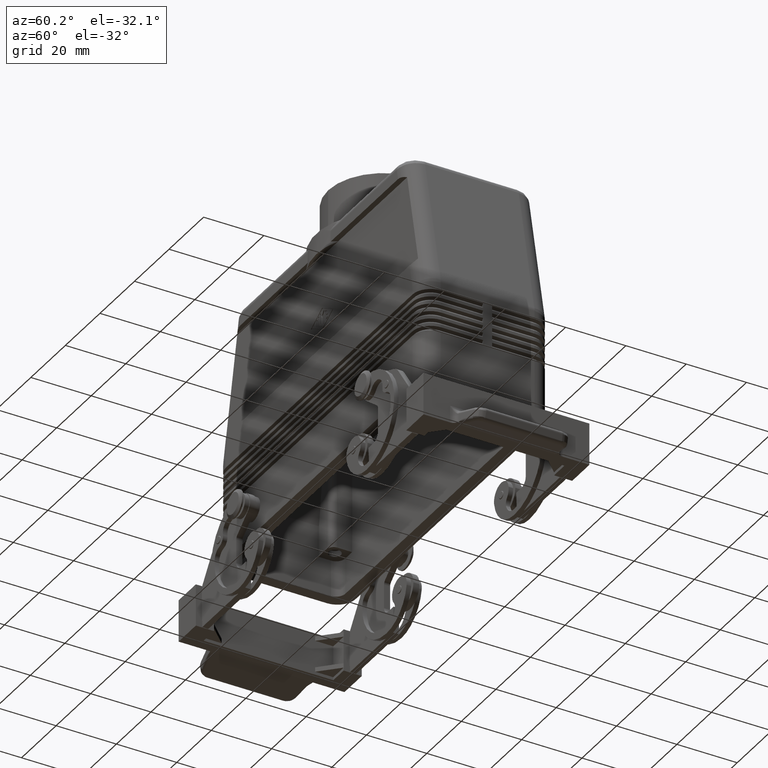
[diagram: clean part render]
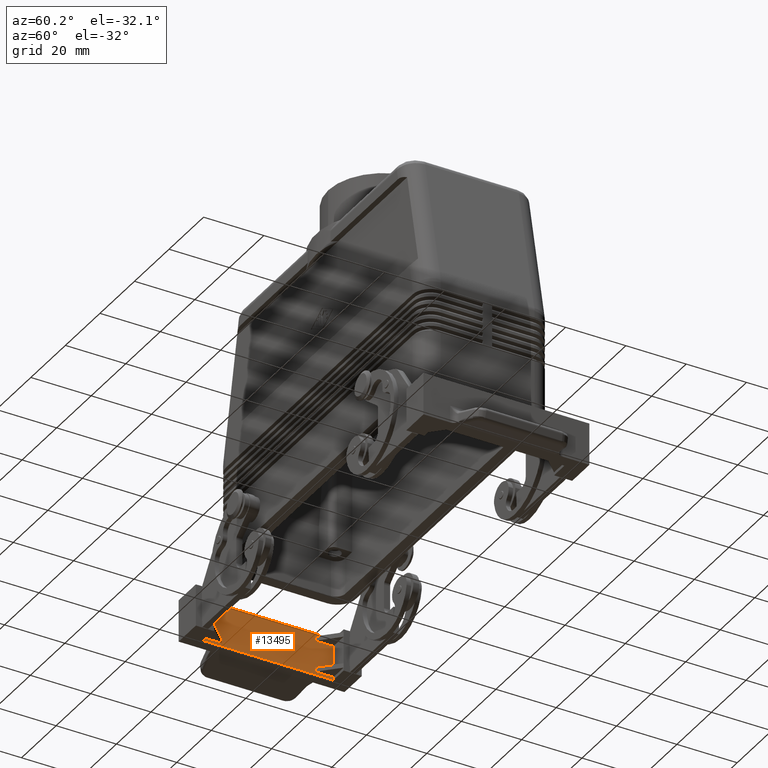
[diagram: same view with one face highlighted and labeled with its STEP entity id]
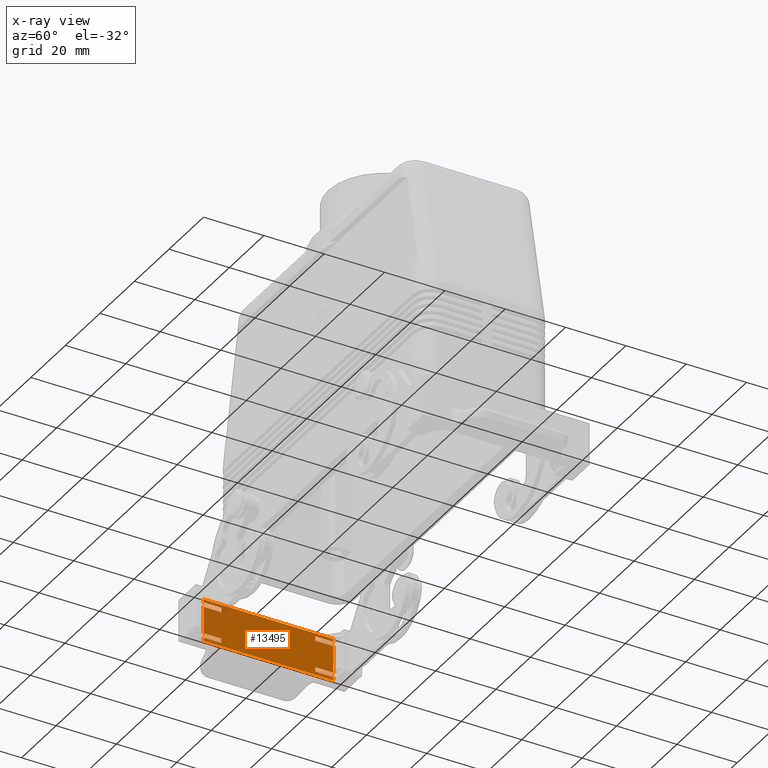
[diagram: x-ray of the same camera — body ghosted, the highlighted face saturated]
A machine part, auxiliary view. The second image highlights one B-rep face of the part: STEP entity #13495.
The next image is the same camera in x-ray: the body ghosted, the highlighted face saturated — about 1% of this face is hidden behind the body in this view.
In plain terms, the highlighted face is a freeform B-spline surface patch.
Its self-contained STEP definition (entity closure, byte-faithful):
#13142=CARTESIAN_POINT('',(-66.900000000000006,15.500000000000007,-9.000000000000002));
#13143=VERTEX_POINT('',#13142);
#13152=CARTESIAN_POINT('',(-66.900000000000006,21.500000000000004,-8.999999999999996));
#13153=VERTEX_POINT('',#13152);
#13154=CARTESIAN_POINT('',(-66.900000000000006,15.500000000000007,-9.000000000000002));
#13155=DIRECTION('',(0.0,1.0,0.0));
#13156=VECTOR('',#13155,5.999999999999996);
#13157=LINE('',#13154,#13156);
#13158=EDGE_CURVE('',#13143,#13153,#13157,.T.);
#13176=CARTESIAN_POINT('',(-66.900000000000006,15.500000000000007,-18.0));
#13177=VERTEX_POINT('',#13176);
#13184=CARTESIAN_POINT('',(-66.900000000000006,21.500000000000004,-18.0));
#13185=VERTEX_POINT('',#13184);
#13192=CARTESIAN_POINT('',(-66.900000000000006,21.500000000000004,-18.0));
#13193=DIRECTION('',(0.0,-1.0,0.0));
#13194=VECTOR('',#13193,5.999999999999996);
#13195=LINE('',#13192,#13194);
#13196=EDGE_CURVE('',#13185,#13177,#13195,.T.);
#13207=CARTESIAN_POINT('',(-66.900000000000006,21.500000000000004,-8.999999999999996));
#13208=DIRECTION('',(0.0,0.0,-1.0));
#13209=VECTOR('',#13208,9.000000000000004);
#13210=LINE('',#13207,#13209);
#13211=EDGE_CURVE('',#13153,#13185,#13210,.T.);
#13229=CARTESIAN_POINT('',(-66.900000000000006,15.499999999999998,-19.500000000000000));
#13230=VERTEX_POINT('',#13229);
#13231=CARTESIAN_POINT('',(-66.900000000000006,15.499999999999998,-19.500000000000000));
#13232=DIRECTION('',(0.0,0.0,1.0));
#13233=VECTOR('',#13232,1.500000000000000);
#13234=LINE('',#13231,#13233);
#13235=EDGE_CURVE('',#13230,#13177,#13234,.T.);
#13268=CARTESIAN_POINT('',(-66.900000000000006,15.499999999999998,-7.500000000000000));
#13269=VERTEX_POINT('',#13268);
#13276=CARTESIAN_POINT('',(-66.900000000000006,15.500000000000007,-9.000000000000002));
#13277=DIRECTION('',(0.0,0.0,1.0));
#13278=VECTOR('',#13277,1.500000000000002);
#13279=LINE('',#13276,#13278);
#13280=EDGE_CURVE('',#13143,#13269,#13279,.T.);
#13290=CARTESIAN_POINT('',(-66.900000000000006,21.500000000000000,-7.500000000000000));
#13291=VERTEX_POINT('',#13290);
#13292=CARTESIAN_POINT('',(-66.900000000000006,15.499999999999998,-7.500000000000000));
#13293=DIRECTION('',(0.0,1.0,0.0));
#13294=VECTOR('',#13293,6.000000000000002);
#13295=LINE('',#13292,#13294);
#13296=EDGE_CURVE('',#13269,#13291,#13295,.T.);
#13313=CARTESIAN_POINT('',(-66.900000000000006,21.500000000000000,-19.500000000000000));
#13314=VERTEX_POINT('',#13313);
#13322=CARTESIAN_POINT('',(-66.900000000000006,21.500000000000000,-19.500000000000000));
#13323=DIRECTION('',(0.0,-1.0,0.0));
#13324=VECTOR('',#13323,6.000000000000002);
#13325=LINE('',#13322,#13324);
#13326=EDGE_CURVE('',#13314,#13230,#13325,.T.);
#13345=CARTESIAN_POINT('',(-66.899999999999991,21.500000000000014,-6.500000000000012));
#13346=VERTEX_POINT('',#13345);
#13353=CARTESIAN_POINT('',(-66.899999999999991,21.500000000000014,-6.500000000000012));
#13354=DIRECTION('',(0.0,0.0,-1.0));
#13355=VECTOR('',#13354,0.999999999999988);
#13356=LINE('',#13353,#13355);
#13357=EDGE_CURVE('',#13346,#13291,#13356,.T.);
#13368=CARTESIAN_POINT('',(-66.899999999999991,21.500000000000014,-20.500000000000014));
#13369=VERTEX_POINT('',#13368);
#13370=CARTESIAN_POINT('',(-66.900000000000006,21.500000000000000,-19.500000000000000));
#13371=DIRECTION('',(0.0,0.0,-1.0));
#13372=VECTOR('',#13371,1.000000000000014);
#13373=LINE('',#13370,#13372);
#13374=EDGE_CURVE('',#13314,#13369,#13373,.T.);
#13393=CARTESIAN_POINT('',(-66.899999999999991,21.500000000000014,-6.500000000000012));
#13394=CARTESIAN_POINT('',(-66.899999999999991,21.500000000000014,-20.500000000000014));
#13395=CARTESIAN_POINT('',(-66.899999999999991,-21.500000000000014,-6.500000000000012));
#13396=CARTESIAN_POINT('',(-66.899999999999991,-21.500000000000014,-20.500000000000014));
#13397=B_SPLINE_SURFACE_WITH_KNOTS('',1,1,((#13393,#13395),(#13394,#13396)),.UNSPECIFIED.,.F.,.F.,.U.,(2,2),(2,2),(0.0,14.000000000000004),(0.0,43.000000000000028),.UNSPECIFIED.);
#13398=ORIENTED_EDGE('',*,*,#13280,.T.);
#13399=ORIENTED_EDGE('',*,*,#13296,.T.);
#13400=ORIENTED_EDGE('',*,*,#13357,.F.);
#13401=CARTESIAN_POINT('',(-66.899999999999991,-21.500000000000014,-6.500000000000012));
#13402=VERTEX_POINT('',#13401);
#13403=CARTESIAN_POINT('',(-66.899999999999991,-21.500000000000014,-6.500000000000012));
#13404=DIRECTION('',(0.0,1.0,0.0));
#13405=VECTOR('',#13404,43.000000000000028);
#13406=LINE('',#13403,#13405);
#13407=EDGE_CURVE('',#13402,#13346,#13406,.T.);
#13408=ORIENTED_EDGE('',*,*,#13407,.F.);
#13409=CARTESIAN_POINT('',(-66.900000000000006,-21.500000000000000,-7.500000000000000));
#13410=VERTEX_POINT('',#13409);
#13411=CARTESIAN_POINT('',(-66.899999999999991,-21.500000000000014,-6.500000000000012));
#13412=DIRECTION('',(0.0,0.0,-1.0));
#13413=VECTOR('',#13412,0.999999999999988);
#13414=LINE('',#13411,#13413);
#13415=EDGE_CURVE('',#13402,#13410,#13414,.T.);
#13416=ORIENTED_EDGE('',*,*,#13415,.T.);
#13417=CARTESIAN_POINT('',(-66.900000000000006,-15.499999999999998,-7.500000000000000));
#13418=VERTEX_POINT('',#13417);
#13419=CARTESIAN_POINT('',(-66.900000000000006,-21.500000000000000,-7.500000000000000));
#13420=DIRECTION('',(0.0,1.0,0.0));
#13421=VECTOR('',#13420,6.000000000000002);
#13422=LINE('',#13419,#13421);
#13423=EDGE_CURVE('',#13410,#13418,#13422,.T.);
#13424=ORIENTED_EDGE('',*,*,#13423,.T.);
#13425=CARTESIAN_POINT('',(-66.900000000000006,-15.500000000000007,-9.000000000000002));
#13426=VERTEX_POINT('',#13425);
#13427=CARTESIAN_POINT('',(-66.900000000000006,-15.499999999999998,-7.500000000000000));
#13428=DIRECTION('',(0.0,0.0,-1.0));
#13429=VECTOR('',#13428,1.500000000000002);
#13430=LINE('',#13427,#13429);
#13431=EDGE_CURVE('',#13418,#13426,#13430,.T.);
#13432=ORIENTED_EDGE('',*,*,#13431,.T.);
#13433=CARTESIAN_POINT('',(-66.900000000000006,-21.500000000000004,-8.999999999999996));
#13434=VERTEX_POINT('',#13433);
#13435=CARTESIAN_POINT('',(-66.900000000000006,-15.500000000000007,-9.000000000000002));
#13436=DIRECTION('',(0.0,-1.0,0.0));
#13437=VECTOR('',#13436,5.999999999999996);
#13438=LINE('',#13435,#13437);
#13439=EDGE_CURVE('',#13426,#13434,#13438,.T.);
#13440=ORIENTED_EDGE('',*,*,#13439,.T.);
#13441=CARTESIAN_POINT('',(-66.900000000000006,-21.500000000000004,-18.0));
#13442=VERTEX_POINT('',#13441);
#13443=CARTESIAN_POINT('',(-66.900000000000006,-21.500000000000004,-8.999999999999996));
#13444=DIRECTION('',(0.0,0.0,-1.0));
#13445=VECTOR('',#13444,9.000000000000004);
#13446=LINE('',#13443,#13445);
#13447=EDGE_CURVE('',#13434,#13442,#13446,.T.);
#13448=ORIENTED_EDGE('',*,*,#13447,.T.);
#13449=CARTESIAN_POINT('',(-66.900000000000006,-15.500000000000007,-18.0));
#13450=VERTEX_POINT('',#13449);
#13451=CARTESIAN_POINT('',(-66.900000000000006,-21.500000000000004,-18.0));
#13452=DIRECTION('',(0.0,1.0,0.0));
#13453=VECTOR('',#13452,5.999999999999996);
#13454=LINE('',#13451,#13453);
#13455=EDGE_CURVE('',#13442,#13450,#13454,.T.);
#13456=ORIENTED_EDGE('',*,*,#13455,.T.);
#13457=CARTESIAN_POINT('',(-66.900000000000006,-15.499999999999998,-19.500000000000000));
#13458=VERTEX_POINT('',#13457);
#13459=CARTESIAN_POINT('',(-66.900000000000006,-15.500000000000007,-18.0));
#13460=DIRECTION('',(0.0,0.0,-1.0));
#13461=VECTOR('',#13460,1.500000000000000);
#13462=LINE('',#13459,#13461);
#13463=EDGE_CURVE('',#13450,#13458,#13462,.T.);
#13464=ORIENTED_EDGE('',*,*,#13463,.T.);
#13465=CARTESIAN_POINT('',(-66.900000000000006,-21.500000000000000,-19.500000000000000));
#13466=VERTEX_POINT('',#13465);
#13467=CARTESIAN_POINT('',(-66.900000000000006,-15.499999999999998,-19.500000000000000));
#13468=DIRECTION('',(0.0,-1.0,0.0));
#13469=VECTOR('',#13468,6.000000000000002);
#13470=LINE('',#13467,#13469);
#13471=EDGE_CURVE('',#13458,#13466,#13470,.T.);
#13472=ORIENTED_EDGE('',*,*,#13471,.T.);
#13473=CARTESIAN_POINT('',(-66.899999999999991,-21.500000000000014,-20.500000000000014));
#13474=VERTEX_POINT('',#13473);
#13475=CARTESIAN_POINT('',(-66.900000000000006,-21.500000000000000,-19.500000000000000));
#13476=DIRECTION('',(0.0,0.0,-1.0));
#13477=VECTOR('',#13476,1.000000000000014);
#13478=LINE('',#13475,#13477);
#13479=EDGE_CURVE('',#13466,#13474,#13478,.T.);
#13480=ORIENTED_EDGE('',*,*,#13479,.T.);
#13481=CARTESIAN_POINT('',(-66.899999999999991,21.500000000000014,-20.500000000000014));
#13482=DIRECTION('',(0.0,-1.0,0.0));
#13483=VECTOR('',#13482,43.000000000000028);
#13484=LINE('',#13481,#13483);
#13485=EDGE_CURVE('',#13369,#13474,#13484,.T.);
#13486=ORIENTED_EDGE('',*,*,#13485,.F.);
#13487=ORIENTED_EDGE('',*,*,#13374,.F.);
#13488=ORIENTED_EDGE('',*,*,#13326,.T.);
#13489=ORIENTED_EDGE('',*,*,#13235,.T.);
#13490=ORIENTED_EDGE('',*,*,#13196,.F.);
#13491=ORIENTED_EDGE('',*,*,#13211,.F.);
#13492=ORIENTED_EDGE('',*,*,#13158,.F.);
#13493=EDGE_LOOP('',(#13398,#13399,#13400,#13408,#13416,#13424,#13432,#13440,#13448,#13456,#13464,#13472,#13480,#13486,#13487,#13488,#13489,#13490,#13491,#13492));
#13494=FACE_OUTER_BOUND('',#13493,.T.);
#13495=ADVANCED_FACE('',(#13494),#13397,.F.);